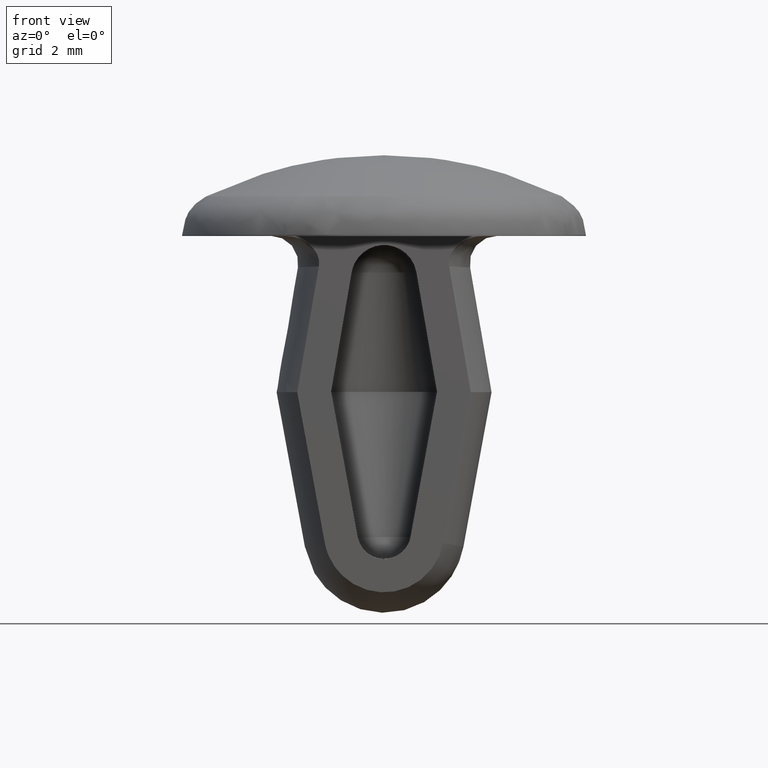
[diagram: clean part render]
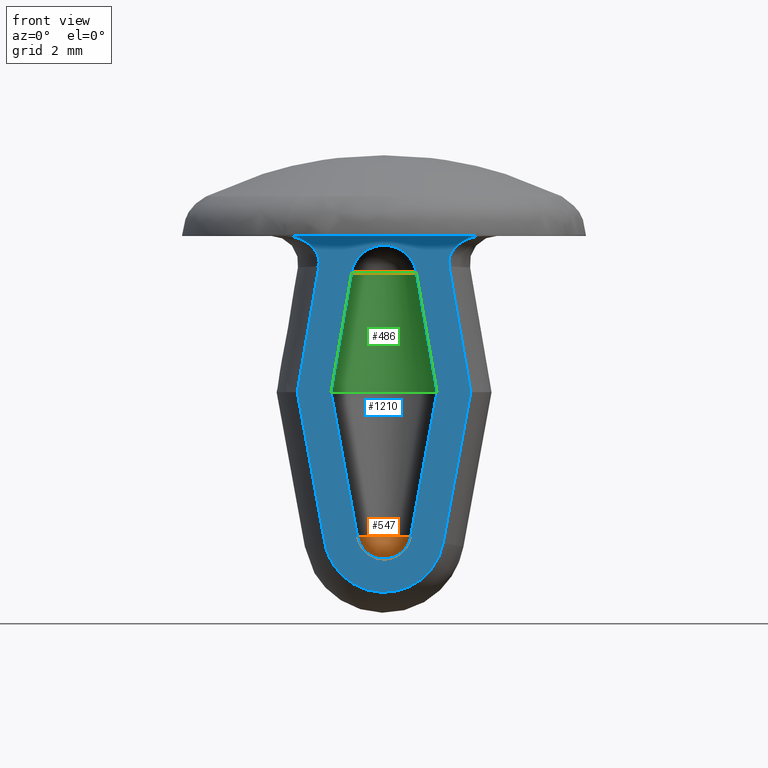
[diagram: same view with three faces highlighted in distinct colors, each labeled with its STEP entity id]
A machine part, front view with three faces highlighted in distinct colors.
Their STEP definitions:

[orange] entity #547 — the highlighted face is a freeform B-spline surface patch.
#487=CARTESIAN_POINT('',(-0.458777173597077,0.152802881176217,-5.372819873838226));
#488=CARTESIAN_POINT('',(-0.396182835972827,0.496405069419229,-5.559850283080735));
#489=CARTESIAN_POINT('',(0.396182960485907,0.496404982625287,-5.559850178736880));
#490=CARTESIAN_POINT('',(0.458777173576604,0.152802780669406,-5.372819753008735));
#491=CARTESIAN_POINT('',(-0.498159922829082,0.110387140557769,-5.463924194592572));
#492=CARTESIAN_POINT('',(-0.458831929140080,0.472605159224372,-5.757249670861254));
#493=CARTESIAN_POINT('',(0.458832100428839,0.472605058705547,-5.757249550017315));
#494=CARTESIAN_POINT('',(0.498159937510773,0.110387031423164,-5.463924063390723));
#495=CARTESIAN_POINT('',(-0.498159922829082,-0.055574258389556,-5.601972035163803));
#496=CARTESIAN_POINT('',(-0.458831929140080,0.166886459490839,-6.011548601746110));
#497=CARTESIAN_POINT('',(0.458832100428839,0.166886358972014,-6.011548480902171));
#498=CARTESIAN_POINT('',(0.498159937510773,-0.055574367524161,-5.601971903961955));
#499=CARTESIAN_POINT('',(-0.458777143664469,-0.152879288882532,-5.627088376659085));
#500=CARTESIAN_POINT('',(-0.396182791328910,-0.031546442467791,-5.999003879040596));
#501=CARTESIAN_POINT('',(0.396182915841957,-0.031546529261723,-5.999003774696750));
#502=CARTESIAN_POINT('',(0.458777143643985,-0.152879389389336,-5.627088255829597));
#510=(BOUNDED_SURFACE()B_SPLINE_SURFACE(2,2,((#487,#491,#495,#499),(#488,#492,#496,#500),(#489,#493,#497,#501),(#490,#494,#498,#502)),.UNSPECIFIED.,.F.,.F.,.U.)B_SPLINE_SURFACE_WITH_KNOTS((3,1,3),(3,1,3),(0.0,1.0,2.0),(0.566662868061662,1.0,1.433337310752273),.UNSPECIFIED.)GEOMETRIC_REPRESENTATION_ITEM()RATIONAL_B_SPLINE_SURFACE(((2.000239075528499,1.842107271164692,1.842107271164692,2.000239206032783),(1.158131804363808,1.0,1.0,1.158131934868091),(1.158131804363808,1.0,1.0,1.158131934868091),(2.000239075528499,1.842107271164692,1.842107271164692,2.000239206032783)))REPRESENTATION_ITEM('')SURFACE());
#511=CARTESIAN_POINT('',(-0.491639912656305,-2.168404E-016,-5.591050515008420));
#512=VERTEX_POINT('',#511);
#513=CARTESIAN_POINT('',(0.491639912656305,-2.168404E-016,-5.591050515008420));
#514=VERTEX_POINT('',#513);
#515=CARTESIAN_POINT('',(-0.491639912656307,0.0,-5.591050515008420));
#516=CARTESIAN_POINT('',(-0.415903463555313,0.0,-6.000000000000001));
#517=CARTESIAN_POINT('',(0.0,0.0,-6.0));
#518=CARTESIAN_POINT('',(0.415903463555313,0.0,-6.000000000000001));
#519=CARTESIAN_POINT('',(0.491639912656307,0.0,-5.591050515008421));
#527=(BOUNDED_CURVE()B_SPLINE_CURVE(2,(#515,#516,#517,#518,#519),.UNSPECIFIED.,.F.,.U.)B_SPLINE_CURVE_WITH_KNOTS((3,2,3),(0.0,0.500000000000000,1.0),.UNSPECIFIED.)CURVE()GEOMETRIC_REPRESENTATION_ITEM()RATIONAL_B_SPLINE_CURVE((1.0,0.768798097687826,1.0,0.768798097687826,1.0))REPRESENTATION_ITEM(''));
#528=EDGE_CURVE('',#512,#514,#527,.T.);
#529=ORIENTED_EDGE('',*,*,#528,.T.);
#530=CARTESIAN_POINT('',(-0.491639912656305,0.0,-5.591050515008420));
#531=CARTESIAN_POINT('',(-0.491639912656305,0.491639912656305,-5.591050515008419));
#532=CARTESIAN_POINT('',(0.0,0.491639912656305,-5.591050515008420));
#533=CARTESIAN_POINT('',(0.491639912656305,0.491639912656305,-5.591050515008419));
#534=CARTESIAN_POINT('',(0.491639912656305,0.0,-5.591050515008420));
#542=(BOUNDED_CURVE()B_SPLINE_CURVE(2,(#530,#531,#532,#533,#534),.UNSPECIFIED.,.F.,.U.)B_SPLINE_CURVE_WITH_KNOTS((3,2,3),(0.0,0.500000000000000,1.0),.UNSPECIFIED.)CURVE()GEOMETRIC_REPRESENTATION_ITEM()RATIONAL_B_SPLINE_CURVE((1.0,0.707106781186547,1.0,0.707106781186547,1.0))REPRESENTATION_ITEM(''));
#543=EDGE_CURVE('',#512,#514,#542,.T.);
#544=ORIENTED_EDGE('',*,*,#543,.F.);
#545=EDGE_LOOP('',(#529,#544));
#546=FACE_OUTER_BOUND('',#545,.T.);
#547=ADVANCED_FACE('',(#546),#510,.F.);

[blue] entity #1210 — the highlighted face is a freeform B-spline surface patch.
#657=CARTESIAN_POINT('',(0.601962951374131,-1.0,-0.676964698056333));
#658=VERTEX_POINT('',#657);
#659=CARTESIAN_POINT('',(-0.601963379025208,-1.0,-0.676967178401292));
#660=VERTEX_POINT('',#659);
#661=CARTESIAN_POINT('',(0.601962951374131,-1.0,-0.676964698056333));
#662=CARTESIAN_POINT('',(0.514537193941193,-1.0,-0.169907939942327));
#663=CARTESIAN_POINT('',(-0.000001258470953,-1.0,-0.169909000001255));
#664=CARTESIAN_POINT('',(-0.514539710883098,-1.0,-0.169910060060184));
#665=CARTESIAN_POINT('',(-0.601963379025208,-1.0,-0.676967178401292));
#673=(BOUNDED_CURVE()B_SPLINE_CURVE(2,(#661,#662,#663,#664,#665),.UNSPECIFIED.,.F.,.U.)B_SPLINE_CURVE_WITH_KNOTS((3,2,3),(0.0,0.500000000000000,1.0),.UNSPECIFIED.)CURVE()GEOMETRIC_REPRESENTATION_ITEM()RATIONAL_B_SPLINE_CURVE((1.0,0.764823181466390,1.0,0.764823181466390,1.0))REPRESENTATION_ITEM(''));
#674=EDGE_CURVE('',#658,#660,#673,.T.);
#695=CARTESIAN_POINT('',(0.984370058216884,-1.0,-2.894893737698580));
#696=VERTEX_POINT('',#695);
#697=CARTESIAN_POINT('',(0.984370058216884,-1.0,-2.894893737698580));
#698=CARTESIAN_POINT('',(0.601962951374131,-1.0,-0.676964698056333));
#699=QUASI_UNIFORM_CURVE('',1,(#697,#698),.UNSPECIFIED.,.F.,.U.);
#700=EDGE_CURVE('',#696,#658,#699,.T.);
#717=CARTESIAN_POINT('',(0.491639912656305,-1.0,-5.591050515008420));
#718=VERTEX_POINT('',#717);
#719=CARTESIAN_POINT('',(0.491639912656305,-1.0,-5.591050515008420));
#720=CARTESIAN_POINT('',(0.984370058216884,-1.0,-2.894893737698580));
#721=QUASI_UNIFORM_CURVE('',1,(#719,#720),.UNSPECIFIED.,.F.,.U.);
#722=EDGE_CURVE('',#718,#696,#721,.T.);
#752=CARTESIAN_POINT('',(-0.491851000000000,-1.0,-5.589882000000000));
#753=VERTEX_POINT('',#752);
#754=CARTESIAN_POINT('',(-0.491851000000000,-1.0,-5.589882000000000));
#755=CARTESIAN_POINT('',(-0.416995914200010,-1.0,-5.999504562004219));
#756=CARTESIAN_POINT('',(-0.000591834351561,-1.0,-5.999999304162594));
#757=CARTESIAN_POINT('',(0.415812245496888,-1.0,-6.000494046320967));
#758=CARTESIAN_POINT('',(0.491639912656305,-1.0,-5.591050515008420));
#766=(BOUNDED_CURVE()B_SPLINE_CURVE(2,(#754,#755,#756,#757,#758),.UNSPECIFIED.,.F.,.U.)B_SPLINE_CURVE_WITH_KNOTS((3,2,3),(0.0,0.500000000000000,1.0),.UNSPECIFIED.)CURVE()GEOMETRIC_REPRESENTATION_ITEM()RATIONAL_B_SPLINE_CURVE((1.0,0.768418287538973,1.0,0.768418287538973,1.0))REPRESENTATION_ITEM(''));
#767=EDGE_CURVE('',#753,#718,#766,.T.);
#785=CARTESIAN_POINT('',(-0.984365058220935,-1.0,-2.894901737651875));
#786=VERTEX_POINT('',#785);
#792=CARTESIAN_POINT('',(-0.984365058220935,-1.0,-2.894901737651875));
#793=CARTESIAN_POINT('',(-0.491851000000000,-1.0,-5.589882000000000));
#794=QUASI_UNIFORM_CURVE('',1,(#792,#793),.UNSPECIFIED.,.F.,.U.);
#795=EDGE_CURVE('',#786,#753,#794,.T.);
#808=CARTESIAN_POINT('',(-0.601963379025208,-1.0,-0.676967178401292));
#809=CARTESIAN_POINT('',(-0.984365058220935,-1.0,-2.894901737651875));
#810=QUASI_UNIFORM_CURVE('',1,(#808,#809),.UNSPECIFIED.,.F.,.U.);
#811=EDGE_CURVE('',#660,#786,#810,.T.);
#947=CARTESIAN_POINT('',(-1.821681669693230,-1.0,0.0));
#948=VERTEX_POINT('',#947);
#949=CARTESIAN_POINT('',(-1.209522740766716,-1.0,-0.563320696419419));
#950=VERTEX_POINT('',#949);
#951=CARTESIAN_POINT('',(-1.821681669693230,-1.0,0.0));
#952=CARTESIAN_POINT('',(-1.742782261762705,-1.0,-7.521653E-016));
#953=CARTESIAN_POINT('',(-1.666388058844457,-1.0,-0.013380751108043));
#954=CARTESIAN_POINT('',(-1.573814554832535,-1.0,-0.045698927997011));
#955=CARTESIAN_POINT('',(-1.555433773103123,-1.0,-0.052989851317744));
#956=CARTESIAN_POINT('',(-1.519704329615396,-1.0,-0.068928928830060));
#957=CARTESIAN_POINT('',(-1.502262775763009,-1.0,-0.077605874388210));
#958=CARTESIAN_POINT('',(-1.451213062798291,-1.000000000000000,-0.105768033699971));
#959=CARTESIAN_POINT('',(-1.418859473367438,-1.0,-0.127350502808083));
#960=CARTESIAN_POINT('',(-1.373178676666828,-1.0,-0.164487841855984));
#961=CARTESIAN_POINT('',(-1.358412057913855,-1.000000000000000,-0.177704734606518));
#962=CARTESIAN_POINT('',(-1.330575105845799,-1.0,-0.205294983612481));
#963=CARTESIAN_POINT('',(-1.317420770477003,-1.0,-0.219729751246135));
#964=CARTESIAN_POINT('',(-1.292758043890212,-1.000000000000000,-0.249977065392949));
#965=CARTESIAN_POINT('',(-1.281248522362059,-1.000000000000000,-0.265788665751611));
#966=CARTESIAN_POINT('',(-1.260086695492757,-1.0,-0.298966495911183));
#967=CARTESIAN_POINT('',(-1.250461505341139,-1.0,-0.316333756820196));
#968=CARTESIAN_POINT('',(-1.233825905201241,-1.000000000000000,-0.351797750506978));
#969=CARTESIAN_POINT('',(-1.226737717093682,-1.0,-0.370005998901381));
#970=CARTESIAN_POINT('',(-1.215244518692513,-1.000000000000000,-0.407461740293053));
#971=CARTESIAN_POINT('',(-1.210821403001721,-1.0,-0.426895359995838));
#972=CARTESIAN_POINT('',(-1.202310723428171,-1.0,-0.485248581241041));
#973=CARTESIAN_POINT('',(-1.202784579334671,-1.0,-0.524239440971494));
#974=CARTESIAN_POINT('',(-1.209522740766716,-1.0,-0.563320696419418));
#975=B_SPLINE_CURVE_WITH_KNOTS('',3,(#951,#952,#953,#954,#955,#956,#957,#958,#959,#960,#961,#962,#963,#964,#965,#966,#967,#968,#969,#970,#971,#972,#973,#974),.UNSPECIFIED.,.F.,.U.,(4,2,2,2,2,2,2,2,2,2,2,4),(0.0,0.249999999999999,0.312499999999999,0.374999999999999,0.499999999999999,0.562499999999999,0.624999999999999,0.687499999999999,0.749999999999999,0.812500000000000,0.875000000000000,1.0),.UNSPECIFIED.);
#976=EDGE_CURVE('',#948,#950,#975,.T.);
#1080=CARTESIAN_POINT('',(1.209527448330830,-1.0,-0.563320378354517));
#1081=VERTEX_POINT('',#1080);
#1082=CARTESIAN_POINT('',(1.821686395527935,-1.0,-6.123032E-017));
#1083=VERTEX_POINT('',#1082);
#1084=CARTESIAN_POINT('',(1.209527448330830,-1.0,-0.563320378354517));
#1085=CARTESIAN_POINT('',(1.202801786555764,-1.0,-0.524311418997223));
#1086=CARTESIAN_POINT('',(1.202309440517310,-1.000000000000000,-0.485345530839942));
#1087=CARTESIAN_POINT('',(1.210812621276378,-1.0,-0.426960557249739));
#1088=CARTESIAN_POINT('',(1.215213435417970,-1.0,-0.407610959625457));
#1089=CARTESIAN_POINT('',(1.226665008513866,-1.0,-0.370226384898174));
#1090=CARTESIAN_POINT('',(1.233736145265696,-1.0,-0.352023729349079));
#1091=CARTESIAN_POINT('',(1.250365819358482,-1.0,-0.316523692179151));
#1092=CARTESIAN_POINT('',(1.259989916391108,-1.0,-0.299148581191714));
#1093=CARTESIAN_POINT('',(1.281032337678500,-1.0,-0.266112514532559));
#1094=CARTESIAN_POINT('',(1.292487985672113,-1.0,-0.250343701144508));
#1095=CARTESIAN_POINT('',(1.317065712775803,-1.0,-0.220142197569971));
#1096=CARTESIAN_POINT('',(1.330188811858625,-1.0,-0.205710325184615));
#1097=CARTESIAN_POINT('',(1.357994154291839,-1.0,-0.178096682389262));
#1098=CARTESIAN_POINT('',(1.372725445602913,-1.0,-0.164888020126447));
#1099=CARTESIAN_POINT('',(1.418209913168390,-1.0,-0.127828151156092));
#1100=CARTESIAN_POINT('',(1.450502620580340,-1.0,-0.106214375120545));
#1101=CARTESIAN_POINT('',(1.518620697024091,-1.0,-0.068533691295834));
#1102=CARTESIAN_POINT('',(1.554781241962581,-1.0,-0.052389995548619));
#1103=CARTESIAN_POINT('',(1.628456905099898,-1.0,-0.026580616921599));
#1104=CARTESIAN_POINT('',(1.666083614961656,-1.0,-0.016790973071428));
#1105=CARTESIAN_POINT('',(1.742926204608414,-1.0,-0.003486844167028));
#1106=CARTESIAN_POINT('',(1.782315623234483,-1.0,1.227562E-015));
#1107=CARTESIAN_POINT('',(1.821686395527935,-1.0,-6.123032E-017));
#1108=B_SPLINE_CURVE_WITH_KNOTS('',3,(#1084,#1085,#1086,#1087,#1088,#1089,#1090,#1091,#1092,#1093,#1094,#1095,#1096,#1097,#1098,#1099,#1100,#1101,#1102,#1103,#1104,#1105,#1106,#1107),.UNSPECIFIED.,.F.,.U.,(4,2,2,2,2,2,2,2,2,2,2,4),(0.0,0.125000000000000,0.187500000000000,0.250000000000000,0.312500000000000,0.375000000000000,0.437500000000000,0.500000000000000,0.625000000000000,0.750000000000000,0.875000000000000,1.0),.UNSPECIFIED.);
#1109=EDGE_CURVE('',#1081,#1083,#1108,.T.);
#1145=CARTESIAN_POINT('',(-2.003667863288141,-1.0,0.330570780096098));
#1146=CARTESIAN_POINT('',(-2.003667863288141,-1.0,-6.948604849960585));
#1147=CARTESIAN_POINT('',(2.003672719419841,-1.0,0.330570780096098));
#1148=CARTESIAN_POINT('',(2.003672719419841,-1.0,-6.948604849960585));
#1149=B_SPLINE_SURFACE_WITH_KNOTS('',1,1,((#1145,#1147),(#1146,#1148)),.UNSPECIFIED.,.F.,.F.,.U.,(2,2),(2,2),(0.0,7.279175630056683),(0.0,4.007340582707982),.UNSPECIFIED.);
#1150=CARTESIAN_POINT('',(-1.821681669693230,-1.0,0.0));
#1151=CARTESIAN_POINT('',(1.821686395527935,-1.0,-6.123032E-017));
#1152=QUASI_UNIFORM_CURVE('',1,(#1150,#1151),.UNSPECIFIED.,.F.,.U.);
#1153=EDGE_CURVE('',#948,#1083,#1152,.T.);
#1154=ORIENTED_EDGE('',*,*,#1153,.F.);
#1155=ORIENTED_EDGE('',*,*,#976,.T.);
#1156=CARTESIAN_POINT('',(-1.612063820851160,-1.0,-2.898054130416190));
#1157=VERTEX_POINT('',#1156);
#1158=CARTESIAN_POINT('',(-1.612063820851160,-1.0,-2.898054130416190));
#1159=CARTESIAN_POINT('',(-1.209522740766716,-1.0,-0.563320696419419));
#1160=QUASI_UNIFORM_CURVE('',1,(#1158,#1159),.UNSPECIFIED.,.F.,.U.);
#1161=EDGE_CURVE('',#1157,#950,#1160,.T.);
#1162=ORIENTED_EDGE('',*,*,#1161,.F.);
#1163=CARTESIAN_POINT('',(-1.099819993383668,-1.0,-5.700993491457711));
#1164=VERTEX_POINT('',#1163);
#1165=CARTESIAN_POINT('',(-1.099819993383668,-1.0,-5.700993491457711));
#1166=CARTESIAN_POINT('',(-1.612063820851160,-1.0,-2.898054130416190));
#1167=QUASI_UNIFORM_CURVE('',1,(#1165,#1166),.UNSPECIFIED.,.F.,.U.);
#1168=EDGE_CURVE('',#1164,#1157,#1167,.T.);
#1169=ORIENTED_EDGE('',*,*,#1168,.F.);
#1170=CARTESIAN_POINT('',(1.099674698166000,-1.0,-5.701773439536611));
#1171=VERTEX_POINT('',#1170);
#1172=CARTESIAN_POINT('',(1.099674698166000,-1.0,-5.701773439536611));
#1173=CARTESIAN_POINT('',(0.931494353903376,-1.0,-6.618364344405143));
#1174=CARTESIAN_POINT('',(-0.000397877461394,-1.0,-6.618033892343409));
#1175=CARTESIAN_POINT('',(-0.932290108826165,-1.0,-6.617703440281677));
#1176=CARTESIAN_POINT('',(-1.099819993383668,-1.0,-5.700993491457711));
#1184=(BOUNDED_CURVE()B_SPLINE_CURVE(2,(#1172,#1173,#1174,#1175,#1176),.UNSPECIFIED.,.F.,.U.)B_SPLINE_CURVE_WITH_KNOTS((3,2,3),(0.0,0.500000000000000,1.0),.UNSPECIFIED.)CURVE()GEOMETRIC_REPRESENTATION_ITEM()RATIONAL_B_SPLINE_CURVE((1.0,0.768154568424222,1.0,0.768154568424222,1.0))REPRESENTATION_ITEM(''));
#1185=EDGE_CURVE('',#1171,#1164,#1184,.T.);
#1186=ORIENTED_EDGE('',*,*,#1185,.F.);
#1187=CARTESIAN_POINT('',(1.612065166157750,-1.0,-2.898046387429615));
#1188=VERTEX_POINT('',#1187);
#1189=CARTESIAN_POINT('',(1.612065166157750,-1.0,-2.898046387429615));
#1190=CARTESIAN_POINT('',(1.099674698166000,-1.0,-5.701773439536611));
#1191=QUASI_UNIFORM_CURVE('',1,(#1189,#1190),.UNSPECIFIED.,.F.,.U.);
#1192=EDGE_CURVE('',#1188,#1171,#1191,.T.);
#1193=ORIENTED_EDGE('',*,*,#1192,.F.);
#1194=CARTESIAN_POINT('',(1.209527448330830,-1.0,-0.563320378354517));
#1195=CARTESIAN_POINT('',(1.612065166157750,-1.0,-2.898046387429615));
#1196=QUASI_UNIFORM_CURVE('',1,(#1194,#1195),.UNSPECIFIED.,.F.,.U.);
#1197=EDGE_CURVE('',#1081,#1188,#1196,.T.);
#1198=ORIENTED_EDGE('',*,*,#1197,.F.);
#1199=ORIENTED_EDGE('',*,*,#1109,.T.);
#1200=EDGE_LOOP('',(#1154,#1155,#1162,#1169,#1186,#1193,#1198,#1199));
#1201=FACE_OUTER_BOUND('',#1200,.T.);
#1202=ORIENTED_EDGE('',*,*,#811,.F.);
#1203=ORIENTED_EDGE('',*,*,#674,.F.);
#1204=ORIENTED_EDGE('',*,*,#700,.F.);
#1205=ORIENTED_EDGE('',*,*,#722,.F.);
#1206=ORIENTED_EDGE('',*,*,#767,.F.);
#1207=ORIENTED_EDGE('',*,*,#795,.F.);
#1208=EDGE_LOOP('',(#1202,#1203,#1204,#1205,#1206,#1207));
#1209=FACE_BOUND('',#1208,.T.);
#1210=ADVANCED_FACE('',(#1201,#1209),#1149,.T.);

[green] entity #486 — the highlighted face is a freeform B-spline surface patch.
#416=CARTESIAN_POINT('',(0.592203920487560,-0.015507405414853,-0.621515756557535));
#417=CARTESIAN_POINT('',(0.993828459650513,-0.026024314097636,-2.951728187227107));
#418=CARTESIAN_POINT('',(0.608545316108406,0.608545316108405,-0.621515756557535));
#419=CARTESIAN_POINT('',(1.021252364620671,1.021252364620668,-2.951728187227107));
#420=CARTESIAN_POINT('',(-0.015507405414851,0.592203920487560,-0.621515756557535));
#421=CARTESIAN_POINT('',(-0.026024314097633,0.993828459650513,-2.951728187227107));
#422=CARTESIAN_POINT('',(-0.639560126938109,0.575862524866715,-0.621515756557535));
#423=CARTESIAN_POINT('',(-1.073300992815936,0.966404554680359,-2.951728187227107));
#424=CARTESIAN_POINT('',(-0.590580730705093,-0.046479711524220,-0.621515756557535));
#425=CARTESIAN_POINT('',(-0.991104444922781,-0.078001611456887,-2.951728187227107));
#433=(BOUNDED_SURFACE()B_SPLINE_SURFACE(1,2,((#416,#418,#420,#422,#424),(#417,#419,#421,#423,#425)),.UNSPECIFIED.,.F.,.F.,.U.)B_SPLINE_SURFACE_WITH_KNOTS((2,2),(3,2,3),(0.0,2.364593590423752),(0.0,1.0,2.0),.UNSPECIFIED.)GEOMETRIC_REPRESENTATION_ITEM()RATIONAL_B_SPLINE_SURFACE(((1.0,0.688354575693754,1.0,0.688354575693754,1.0),(1.0,0.688354575693754,1.0,0.688354575693754,1.0)))REPRESENTATION_ITEM('')SURFACE());
#434=CARTESIAN_POINT('',(-0.601963379025208,0.0,-0.676967178401292));
#435=VERTEX_POINT('',#434);
#436=CARTESIAN_POINT('',(0.601966999999988,-2.168404E-016,-0.676964000000000));
#437=VERTEX_POINT('',#436);
#438=CARTESIAN_POINT('',(-0.601963379025208,0.0,-0.676967178401292));
#439=CARTESIAN_POINT('',(-0.601963379025208,0.347545809493265,-0.676967178401292));
#440=CARTESIAN_POINT('',(-0.300980784268909,0.521318714239897,-0.676966383800969));
#441=CARTESIAN_POINT('',(0.000001810487390,0.695091618986529,-0.676965589200646));
#442=CARTESIAN_POINT('',(0.300984405243689,0.521318714239897,-0.676964794600323));
#443=CARTESIAN_POINT('',(0.601966999999988,0.347545809493264,-0.676964000000000));
#444=CARTESIAN_POINT('',(0.601966999999988,-2.168404E-016,-0.676964000000000));
#452=(BOUNDED_CURVE()B_SPLINE_CURVE(2,(#438,#439,#440,#441,#442,#443,#444),.UNSPECIFIED.,.F.,.U.)B_SPLINE_CURVE_WITH_KNOTS((3,2,2,3),(0.0,0.333333333333333,0.666666666666667,1.0),.UNSPECIFIED.)CURVE()GEOMETRIC_REPRESENTATION_ITEM()RATIONAL_B_SPLINE_CURVE((1.0,0.866025403784439,1.0,0.866025403784439,1.0,0.866025403784439,1.0))REPRESENTATION_ITEM(''));
#453=EDGE_CURVE('',#435,#437,#452,.T.);
#454=ORIENTED_EDGE('',*,*,#453,.F.);
#455=CARTESIAN_POINT('',(-0.984370058216885,-2.168404E-016,-2.894893737698580));
#456=VERTEX_POINT('',#455);
#457=CARTESIAN_POINT('',(-0.601963379025208,0.0,-0.676967178401292));
#458=CARTESIAN_POINT('',(-0.984370058216885,-2.168404E-016,-2.894893737698580));
#459=QUASI_UNIFORM_CURVE('',1,(#457,#458),.UNSPECIFIED.,.F.,.U.);
#460=EDGE_CURVE('',#435,#456,#459,.T.);
#461=ORIENTED_EDGE('',*,*,#460,.T.);
#462=CARTESIAN_POINT('',(0.984370058216885,-2.168404E-016,-2.894893737698580));
#463=VERTEX_POINT('',#462);
#464=CARTESIAN_POINT('',(-0.984370058216884,0.0,-2.894893737698580));
#465=CARTESIAN_POINT('',(-0.984370058216884,0.984370058216884,-2.894893737698581));
#466=CARTESIAN_POINT('',(0.0,0.984370058216884,-2.894893737698580));
#467=CARTESIAN_POINT('',(0.984370058216884,0.984370058216884,-2.894893737698581));
#468=CARTESIAN_POINT('',(0.984370058216884,0.0,-2.894893737698580));
#476=(BOUNDED_CURVE()B_SPLINE_CURVE(2,(#464,#465,#466,#467,#468),.UNSPECIFIED.,.F.,.U.)B_SPLINE_CURVE_WITH_KNOTS((3,2,3),(0.0,0.500000000000000,1.0),.UNSPECIFIED.)CURVE()GEOMETRIC_REPRESENTATION_ITEM()RATIONAL_B_SPLINE_CURVE((1.0,0.707106781186548,1.0,0.707106781186548,1.0))REPRESENTATION_ITEM(''));
#477=EDGE_CURVE('',#456,#463,#476,.T.);
#478=ORIENTED_EDGE('',*,*,#477,.T.);
#479=CARTESIAN_POINT('',(0.984370058216885,-2.168404E-016,-2.894893737698580));
#480=CARTESIAN_POINT('',(0.601966999999988,-2.168404E-016,-0.676964000000000));
#481=QUASI_UNIFORM_CURVE('',1,(#479,#480),.UNSPECIFIED.,.F.,.U.);
#482=EDGE_CURVE('',#463,#437,#481,.T.);
#483=ORIENTED_EDGE('',*,*,#482,.T.);
#484=EDGE_LOOP('',(#454,#461,#478,#483));
#485=FACE_OUTER_BOUND('',#484,.T.);
#486=ADVANCED_FACE('',(#485),#433,.F.);